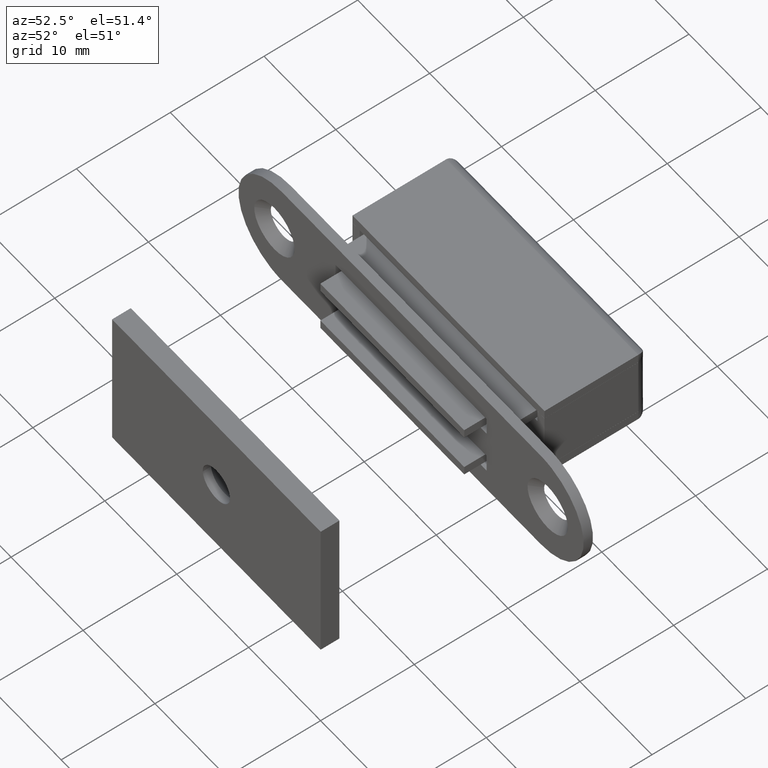
[diagram: clean part render]
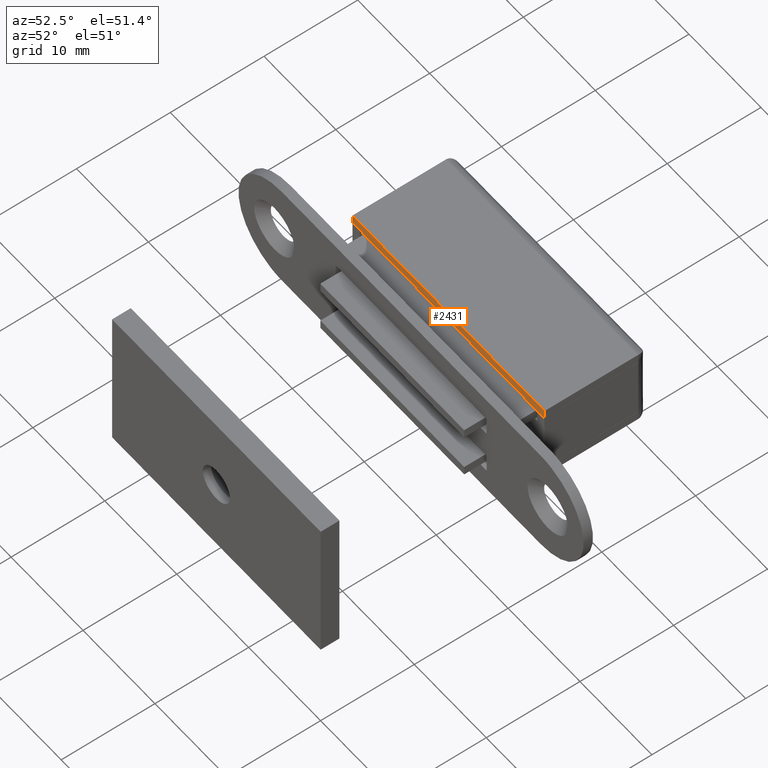
[diagram: same view with one face highlighted and labeled with its STEP entity id]
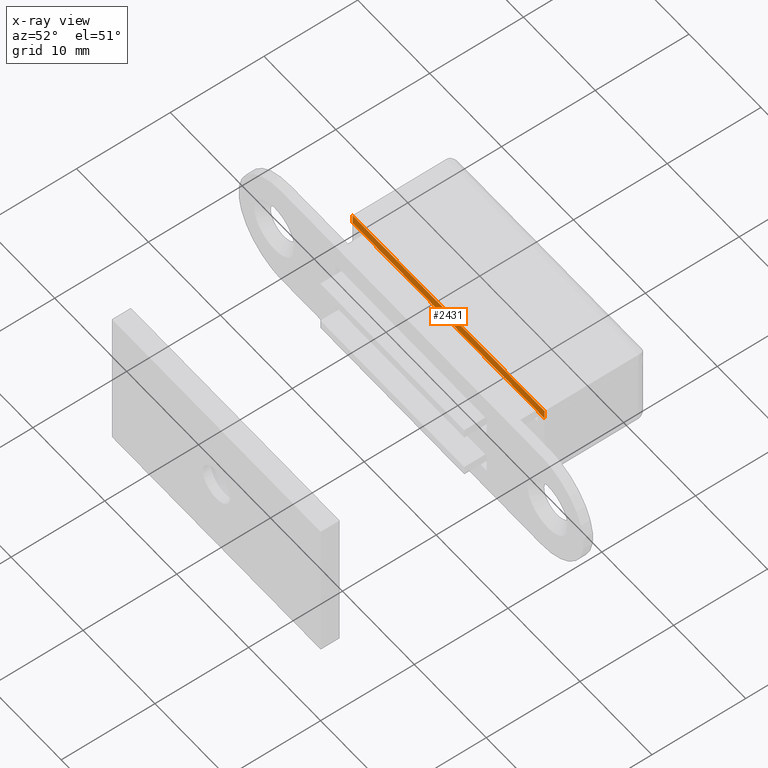
[diagram: x-ray of the same camera — body ghosted, the highlighted face saturated]
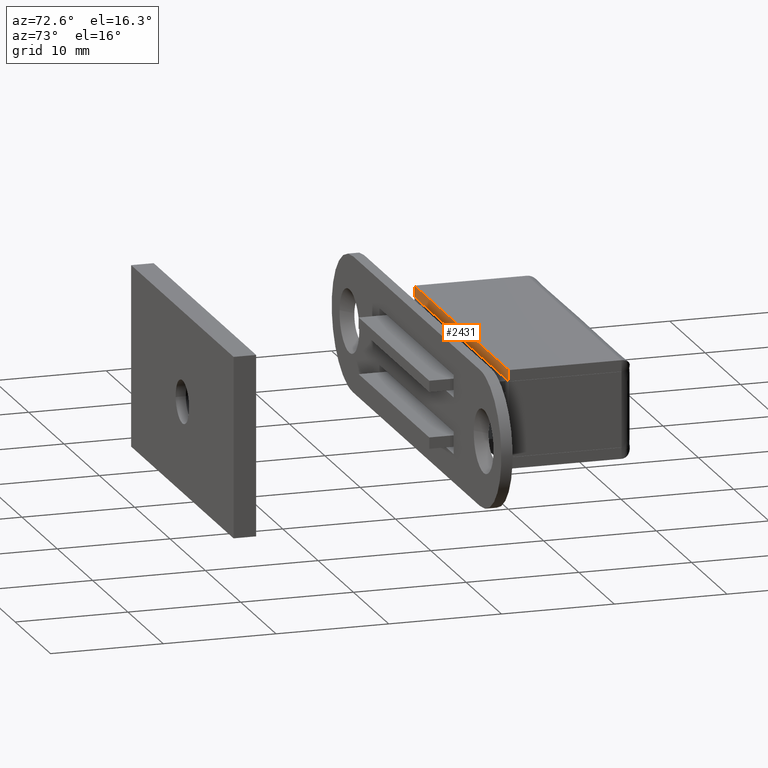
[diagram: same view with one face highlighted and labeled with its STEP entity id]
A machine part, auxiliary view. The second image highlights one B-rep face of the part: STEP entity #2431.
The next image is the same camera in x-ray: the body ghosted, the highlighted face saturated — about 0% of this face is hidden behind the body in this view.
A second angle (auxiliary view) of the same face is appended — the face is thin or edge-on in the first view.
In plain terms, the highlighted face is a freeform B-spline surface patch.
Its self-contained STEP definition (entity closure, byte-faithful):
#2349=CARTESIAN_POINT('',(13.349998000000021,-10.999991999999800,3.349998000000000));
#2350=VERTEX_POINT('',#2349);
#2357=CARTESIAN_POINT('',(13.349998000000021,-10.999991999999800,4.349998000000000));
#2358=VERTEX_POINT('',#2357);
#2364=CARTESIAN_POINT('',(13.349998000000021,-10.999991999999800,3.349998000000000));
#2365=CARTESIAN_POINT('',(13.349998000000021,-10.999991999999800,4.349998000000000));
#2366=QUASI_UNIFORM_CURVE('',1,(#2364,#2365),.UNSPECIFIED.,.F.,.U.);
#2367=EDGE_CURVE('',#2350,#2358,#2366,.T.);
#2377=CARTESIAN_POINT('',(-13.349999000000000,-10.999991999999800,3.349998000000000));
#2378=VERTEX_POINT('',#2377);
#2386=CARTESIAN_POINT('',(13.349998000000021,-10.999991999999800,3.349998000000000));
#2387=CARTESIAN_POINT('',(-13.349999000000000,-10.999991999999800,3.349998000000000));
#2388=QUASI_UNIFORM_CURVE('',1,(#2386,#2387),.UNSPECIFIED.,.F.,.U.);
#2389=EDGE_CURVE('',#2350,#2378,#2388,.T.);
#2401=CARTESIAN_POINT('',(-13.349999000000000,-10.999991999999800,4.349998000000000));
#2402=VERTEX_POINT('',#2401);
#2408=CARTESIAN_POINT('',(13.349998000000021,-10.999991999999800,4.349998000000000));
#2409=CARTESIAN_POINT('',(-13.349999000000000,-10.999991999999800,4.349998000000000));
#2410=QUASI_UNIFORM_CURVE('',1,(#2408,#2409),.UNSPECIFIED.,.F.,.U.);
#2411=EDGE_CURVE('',#2358,#2402,#2410,.T.);
#2416=CARTESIAN_POINT('',(-14.683663798400231,-10.999991999999800,4.399947998061808));
#2417=CARTESIAN_POINT('',(-14.683663798400231,-10.999991999999800,3.300047975116104));
#2418=CARTESIAN_POINT('',(14.683663514549981,-10.999991999999800,4.399947998061808));
#2419=CARTESIAN_POINT('',(14.683663514549981,-10.999991999999800,3.300047975116104));
#2420=B_SPLINE_SURFACE_WITH_KNOTS('',1,1,((#2416,#2418),(#2417,#2419)),.UNSPECIFIED.,.F.,.F.,.U.,(2,2),(2,2),(0.041708334948495,0.958291687403247),(0.0,29.367327312950199),.UNSPECIFIED.);
#2421=CARTESIAN_POINT('',(-13.349999000000000,-10.999991999999800,3.349998000000000));
#2422=CARTESIAN_POINT('',(-13.349999000000000,-10.999991999999800,4.349998000000000));
#2423=QUASI_UNIFORM_CURVE('',1,(#2421,#2422),.UNSPECIFIED.,.F.,.U.);
#2424=EDGE_CURVE('',#2378,#2402,#2423,.T.);
#2425=ORIENTED_EDGE('',*,*,#2424,.F.);
#2426=ORIENTED_EDGE('',*,*,#2389,.F.);
#2427=ORIENTED_EDGE('',*,*,#2367,.T.);
#2428=ORIENTED_EDGE('',*,*,#2411,.T.);
#2429=EDGE_LOOP('',(#2425,#2426,#2427,#2428));
#2430=FACE_OUTER_BOUND('',#2429,.T.);
#2431=ADVANCED_FACE('',(#2430),#2420,.T.);